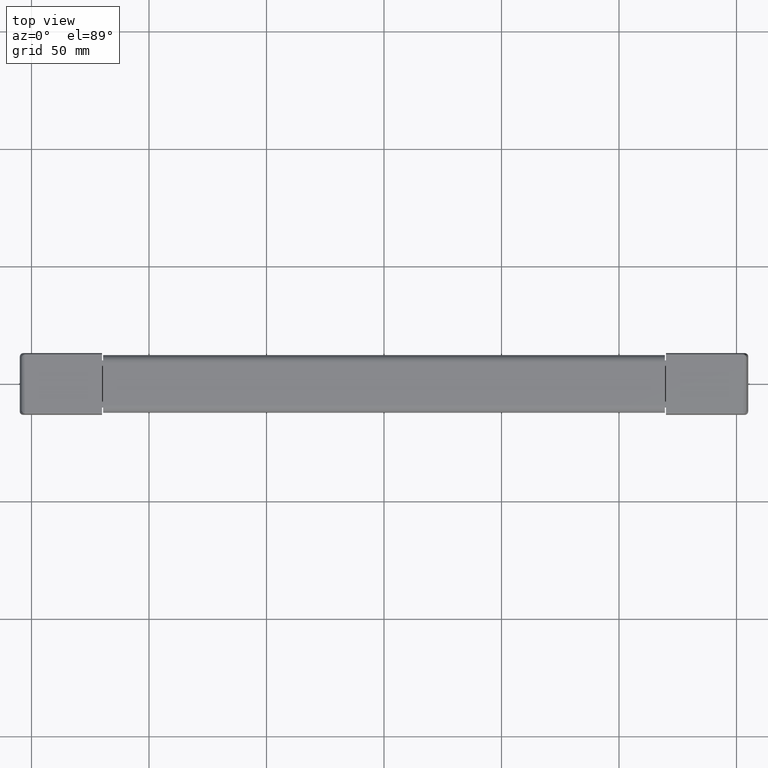
[diagram: clean part render]
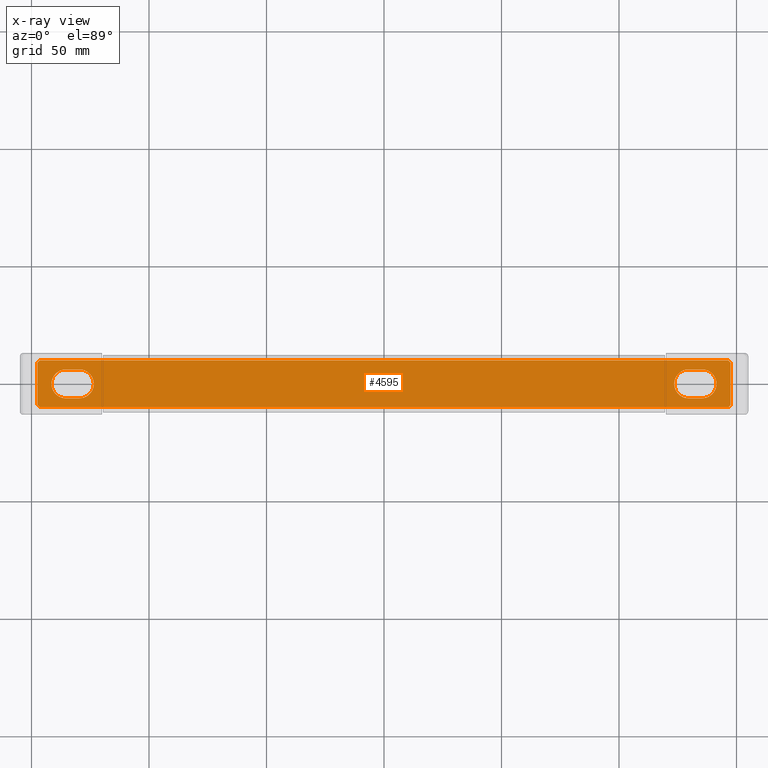
[diagram: x-ray — body ghosted, one internal face saturated and labeled with its STEP entity id]
A machine part, top view, then the same camera in x-ray: the body is ghosted and one INTERNAL B-rep face — a face not visible from any outside direction — is saturated and labeled: STEP entity #4595.
In plain terms, the highlighted face is a freeform B-spline surface patch.
Its self-contained STEP definition (entity closure, byte-faithful):
#3914=CARTESIAN_POINT('',(-129.650000000000010,-6.150000000000000,3.899999999999905));
#3915=VERTEX_POINT('',#3914);
#3916=CARTESIAN_POINT('',(-123.500000000002300,0.000005278252155,3.899999999999905));
#3917=VERTEX_POINT('',#3916);
#3918=CARTESIAN_POINT('',(-129.650000000000010,-6.150000000000000,3.899999999999905));
#3919=CARTESIAN_POINT('',(-128.794482525852090,-6.150978433271495,3.899999999999899));
#3920=CARTESIAN_POINT('',(-127.386549640076790,-5.851243054284996,3.899999999999921));
#3921=CARTESIAN_POINT('',(-125.830506803799390,-4.891965705270945,3.899999999999888));
#3922=CARTESIAN_POINT('',(-124.901115071875910,-3.962382461182531,3.899999999999928));
#3923=CARTESIAN_POINT('',(-124.244012957276200,-3.004656579273076,3.899999999999865));
#3924=CARTESIAN_POINT('',(-123.670204948428900,-1.710482182315854,3.899999999999920));
#3925=CARTESIAN_POINT('',(-123.499648515715090,-0.654126681943962,3.899999999999932));
#3926=CARTESIAN_POINT('',(-123.500000000002300,0.000005278252155,3.899999999999905));
#3927=B_SPLINE_CURVE_WITH_KNOTS('',3,(#3918,#3919,#3920,#3921,#3922,#3923,#3924,#3925,#3926),.UNSPECIFIED.,.F.,.U.,(4,1,1,1,1,1,4),(0.000000526711212,2.566114346727715,4.226619227032344,5.434025428642538,6.490741044698662,7.698351456268242,9.660642802673934),.UNSPECIFIED.);
#3928=EDGE_CURVE('',#3915,#3917,#3927,.T.);
#3930=CARTESIAN_POINT('',(-129.650000000000010,6.150000000000000,3.899999999999905));
#3931=VERTEX_POINT('',#3930);
#3932=CARTESIAN_POINT('',(-123.500000000002300,0.000005278252155,3.899999999999905));
#3933=CARTESIAN_POINT('',(-123.499936635991010,0.452815828078253,3.899999999999897));
#3934=CARTESIAN_POINT('',(-123.606015283477700,1.408788094731851,3.899999999999924));
#3935=CARTESIAN_POINT('',(-124.135265509304110,2.888558484527121,3.899999999999883));
#3936=CARTESIAN_POINT('',(-125.130937165871700,4.302560896817306,3.899999999999929));
#3937=CARTESIAN_POINT('',(-126.414214658166900,5.303692773215535,3.899999999999897));
#3938=CARTESIAN_POINT('',(-127.939523781540000,5.979771664106830,3.899999999999912));
#3939=CARTESIAN_POINT('',(-128.995869453399310,6.150354711880121,3.899999999999889));
#3940=CARTESIAN_POINT('',(-129.650000000000010,6.150000000000000,3.899999999999905));
#3941=B_SPLINE_CURVE_WITH_KNOTS('',3,(#3932,#3933,#3934,#3935,#3936,#3937,#3938,#3939,#3940),.UNSPECIFIED.,.F.,.U.,(4,1,1,1,1,1,4),(0.000000533938991,1.358476843175039,2.868028268193784,4.679441448799272,6.490737055104865,7.698346712516415,9.660636852705235),.UNSPECIFIED.);
#3942=EDGE_CURVE('',#3917,#3931,#3941,.T.);
#3992=CARTESIAN_POINT('',(-135.349999999999990,6.150000000000000,3.899999999999905));
#3993=VERTEX_POINT('',#3992);
#3994=CARTESIAN_POINT('',(-135.349999999999990,6.150000000000000,3.899999999999905));
#3995=CARTESIAN_POINT('',(-129.650000000000010,6.150000000000000,3.899999999999905));
#3996=QUASI_UNIFORM_CURVE('',1,(#3994,#3995),.UNSPECIFIED.,.F.,.U.);
#3997=EDGE_CURVE('',#3993,#3931,#3996,.T.);
#4033=CARTESIAN_POINT('',(-141.499999999997700,-0.000005278252190,3.899999999999905));
#4034=VERTEX_POINT('',#4033);
#4035=CARTESIAN_POINT('',(-135.349999999999990,6.150000000000000,3.899999999999905));
#4036=CARTESIAN_POINT('',(-135.903476997526890,6.150191622984140,3.899999999999907));
#4037=CARTESIAN_POINT('',(-136.959970820752600,6.006369374382826,3.899999999999907));
#4038=CARTESIAN_POINT('',(-138.505654475204490,5.366394890549661,3.899999999999903));
#4039=CARTESIAN_POINT('',(-139.788766922174890,4.365029047601166,3.899999999999894));
#4040=CARTESIAN_POINT('',(-140.694568998462100,3.143333747367200,3.899999999999904));
#4041=CARTESIAN_POINT('',(-141.329762568807010,1.710467088879136,3.899999999999901));
#4042=CARTESIAN_POINT('',(-141.500363166976000,0.654130221222710,3.899999999999915));
#4043=CARTESIAN_POINT('',(-141.499999999997700,-0.000005278252190,3.899999999999905));
#4044=B_SPLINE_CURVE_WITH_KNOTS('',3,(#4035,#4036,#4037,#4038,#4039,#4040,#4041,#4042,#4043),.UNSPECIFIED.,.F.,.U.,(4,1,1,1,1,1,4),(0.000000526682985,1.660411063216992,3.169902204550543,4.981197631951156,6.490741044688146,7.698351456261895,9.660642802674202),.UNSPECIFIED.);
#4045=EDGE_CURVE('',#3993,#4034,#4044,.T.);
#4047=CARTESIAN_POINT('',(-135.349999999999990,-6.150000000000000,3.899999999999905));
#4048=VERTEX_POINT('',#4047);
#4049=CARTESIAN_POINT('',(-141.499999999997700,-0.000005278252190,3.899999999999905));
#4050=CARTESIAN_POINT('',(-141.500201572533400,-0.553484951431761,3.899999999999908));
#4051=CARTESIAN_POINT('',(-141.369981668389190,-1.509322044904363,3.899999999999895));
#4052=CARTESIAN_POINT('',(-140.769884155257810,-3.066172236373837,3.899999999999920));
#4053=CARTESIAN_POINT('',(-139.887964077275000,-4.255436383360832,3.899999999999892));
#4054=CARTESIAN_POINT('',(-138.704746836212910,-5.201814884983049,3.899999999999909));
#4055=CARTESIAN_POINT('',(-137.311884710843490,-5.924796245212763,3.899999999999901));
#4056=CARTESIAN_POINT('',(-136.104824895975410,-6.150675103583311,3.899999999999910));
#4057=CARTESIAN_POINT('',(-135.349999999999990,-6.150000000000000,3.899999999999905));
#4058=B_SPLINE_CURVE_WITH_KNOTS('',3,(#4049,#4050,#4051,#4052,#4053,#4054,#4055,#4056,#4057),.UNSPECIFIED.,.F.,.U.,(4,1,1,1,1,1,4),(0.000000533917330,1.660410047678808,2.868028268179860,4.981194574179535,6.037828466710582,7.396429561214664,9.660636852705192),.UNSPECIFIED.);
#4059=EDGE_CURVE('',#4034,#4048,#4058,.T.);
#4103=CARTESIAN_POINT('',(-129.650000000000010,-6.150000000000000,3.899999999999905));
#4104=CARTESIAN_POINT('',(-135.349999999999990,-6.150000000000000,3.899999999999905));
#4105=QUASI_UNIFORM_CURVE('',1,(#4103,#4104),.UNSPECIFIED.,.F.,.U.);
#4106=EDGE_CURVE('',#3915,#4048,#4105,.T.);
#4136=CARTESIAN_POINT('',(135.349999999999990,-6.150000000000000,3.899999999999905));
#4137=VERTEX_POINT('',#4136);
#4138=CARTESIAN_POINT('',(141.499999999997700,0.000005278252190,3.899999999999905));
#4139=VERTEX_POINT('',#4138);
#4140=CARTESIAN_POINT('',(135.349999999999990,-6.150000000000000,3.899999999999905));
#4141=CARTESIAN_POINT('',(135.903476997526890,-6.150191622984140,3.899999999999907));
#4142=CARTESIAN_POINT('',(136.959970820752600,-6.006369374382826,3.899999999999907));
#4143=CARTESIAN_POINT('',(138.505654475204490,-5.366394890549661,3.899999999999903));
#4144=CARTESIAN_POINT('',(139.788766922174890,-4.365029047601166,3.899999999999894));
#4145=CARTESIAN_POINT('',(140.694568998462100,-3.143333747367200,3.899999999999904));
#4146=CARTESIAN_POINT('',(141.329762568807010,-1.710467088879136,3.899999999999901));
#4147=CARTESIAN_POINT('',(141.500363166976000,-0.654130221222710,3.899999999999915));
#4148=CARTESIAN_POINT('',(141.499999999997700,0.000005278252190,3.899999999999905));
#4149=B_SPLINE_CURVE_WITH_KNOTS('',3,(#4140,#4141,#4142,#4143,#4144,#4145,#4146,#4147,#4148),.UNSPECIFIED.,.F.,.U.,(4,1,1,1,1,1,4),(0.000000526682985,1.660411063216992,3.169902204550543,4.981197631951156,6.490741044688146,7.698351456261895,9.660642802674202),.UNSPECIFIED.);
#4150=EDGE_CURVE('',#4137,#4139,#4149,.T.);
#4152=CARTESIAN_POINT('',(135.349999999999990,6.150000000000000,3.899999999999905));
#4153=VERTEX_POINT('',#4152);
#4154=CARTESIAN_POINT('',(141.499999999997700,0.000005278252190,3.899999999999905));
#4155=CARTESIAN_POINT('',(141.500201572533400,0.553484951431761,3.899999999999908));
#4156=CARTESIAN_POINT('',(141.369981668389190,1.509322044904363,3.899999999999895));
#4157=CARTESIAN_POINT('',(140.769884155257810,3.066172236373837,3.899999999999920));
#4158=CARTESIAN_POINT('',(139.887964077275000,4.255436383360832,3.899999999999892));
#4159=CARTESIAN_POINT('',(138.704746836212910,5.201814884983049,3.899999999999909));
#4160=CARTESIAN_POINT('',(137.311884710843490,5.924796245212763,3.899999999999901));
#4161=CARTESIAN_POINT('',(136.104824895975410,6.150675103583311,3.899999999999910));
#4162=CARTESIAN_POINT('',(135.349999999999990,6.150000000000000,3.899999999999905));
#4163=B_SPLINE_CURVE_WITH_KNOTS('',3,(#4154,#4155,#4156,#4157,#4158,#4159,#4160,#4161,#4162),.UNSPECIFIED.,.F.,.U.,(4,1,1,1,1,1,4),(0.000000533917330,1.660410047678808,2.868028268179860,4.981194574179535,6.037828466710582,7.396429561214664,9.660636852705192),.UNSPECIFIED.);
#4164=EDGE_CURVE('',#4139,#4153,#4163,.T.);
#4214=CARTESIAN_POINT('',(129.650000000000010,-6.150000000000000,3.899999999999905));
#4215=VERTEX_POINT('',#4214);
#4216=CARTESIAN_POINT('',(129.650000000000010,-6.150000000000000,3.899999999999905));
#4217=CARTESIAN_POINT('',(135.349999999999990,-6.150000000000000,3.899999999999905));
#4218=QUASI_UNIFORM_CURVE('',1,(#4216,#4217),.UNSPECIFIED.,.F.,.U.);
#4219=EDGE_CURVE('',#4215,#4137,#4218,.T.);
#4255=CARTESIAN_POINT('',(129.650000000000010,6.150000000000000,3.899999999999905));
#4256=VERTEX_POINT('',#4255);
#4257=CARTESIAN_POINT('',(123.500000000002300,-0.000005278252155,3.899999999999905));
#4258=VERTEX_POINT('',#4257);
#4259=CARTESIAN_POINT('',(129.650000000000010,6.150000000000000,3.899999999999905));
#4260=CARTESIAN_POINT('',(128.794482525852090,6.150978433271495,3.899999999999899));
#4261=CARTESIAN_POINT('',(127.386549640076790,5.851243054284996,3.899999999999921));
#4262=CARTESIAN_POINT('',(125.830506803799390,4.891965705270945,3.899999999999888));
#4263=CARTESIAN_POINT('',(124.901115071875910,3.962382461182531,3.899999999999928));
#4264=CARTESIAN_POINT('',(124.244012957276200,3.004656579273076,3.899999999999865));
#4265=CARTESIAN_POINT('',(123.670204948428900,1.710482182315854,3.899999999999920));
#4266=CARTESIAN_POINT('',(123.499648515715090,0.654126681943962,3.899999999999932));
#4267=CARTESIAN_POINT('',(123.500000000002300,-0.000005278252155,3.899999999999905));
#4268=B_SPLINE_CURVE_WITH_KNOTS('',3,(#4259,#4260,#4261,#4262,#4263,#4264,#4265,#4266,#4267),.UNSPECIFIED.,.F.,.U.,(4,1,1,1,1,1,4),(0.000000526711212,2.566114346727715,4.226619227032344,5.434025428642538,6.490741044698662,7.698351456268242,9.660642802673934),.UNSPECIFIED.);
#4269=EDGE_CURVE('',#4256,#4258,#4268,.T.);
#4271=CARTESIAN_POINT('',(123.500000000002300,-0.000005278252155,3.899999999999905));
#4272=CARTESIAN_POINT('',(123.499936635991010,-0.452815828078253,3.899999999999897));
#4273=CARTESIAN_POINT('',(123.606015283477700,-1.408788094731851,3.899999999999924));
#4274=CARTESIAN_POINT('',(124.135265509304110,-2.888558484527121,3.899999999999883));
#4275=CARTESIAN_POINT('',(125.130937165871700,-4.302560896817306,3.899999999999929));
#4276=CARTESIAN_POINT('',(126.414214658166900,-5.303692773215535,3.899999999999897));
#4277=CARTESIAN_POINT('',(127.939523781540000,-5.979771664106830,3.899999999999912));
#4278=CARTESIAN_POINT('',(128.995869453399310,-6.150354711880121,3.899999999999889));
#4279=CARTESIAN_POINT('',(129.650000000000010,-6.150000000000000,3.899999999999905));
#4280=B_SPLINE_CURVE_WITH_KNOTS('',3,(#4271,#4272,#4273,#4274,#4275,#4276,#4277,#4278,#4279),.UNSPECIFIED.,.F.,.U.,(4,1,1,1,1,1,4),(0.000000533938991,1.358476843175039,2.868028268193784,4.679441448799272,6.490737055104865,7.698346712516415,9.660636852705235),.UNSPECIFIED.);
#4281=EDGE_CURVE('',#4258,#4215,#4280,.T.);
#4325=CARTESIAN_POINT('',(135.349999999999990,6.150000000000000,3.899999999999905));
#4326=CARTESIAN_POINT('',(129.650000000000010,6.150000000000000,3.899999999999905));
#4327=QUASI_UNIFORM_CURVE('',1,(#4325,#4326),.UNSPECIFIED.,.F.,.U.);
#4328=EDGE_CURVE('',#4153,#4256,#4327,.T.);
#4345=CARTESIAN_POINT('',(-147.500000000000000,9.0,3.899999999999905));
#4346=VERTEX_POINT('',#4345);
#4347=CARTESIAN_POINT('',(-146.500000000000000,10.0,3.899999999999905));
#4348=VERTEX_POINT('',#4347);
#4349=CARTESIAN_POINT('',(-147.500000000000000,9.0,3.899999999999905));
#4350=CARTESIAN_POINT('',(-146.500000000000000,10.0,3.899999999999905));
#4351=QUASI_UNIFORM_CURVE('',1,(#4349,#4350),.UNSPECIFIED.,.F.,.U.);
#4352=EDGE_CURVE('',#4346,#4348,#4351,.T.);
#4381=CARTESIAN_POINT('',(-147.500000000000000,-9.0,3.899999999999905));
#4382=VERTEX_POINT('',#4381);
#4383=CARTESIAN_POINT('',(-147.500000000000000,-9.0,3.899999999999905));
#4384=CARTESIAN_POINT('',(-147.500000000000000,9.0,3.899999999999905));
#4385=QUASI_UNIFORM_CURVE('',1,(#4383,#4384),.UNSPECIFIED.,.F.,.U.);
#4386=EDGE_CURVE('',#4382,#4346,#4385,.T.);
#4409=CARTESIAN_POINT('',(-146.500000000000000,-10.0,3.899999999999905));
#4410=VERTEX_POINT('',#4409);
#4411=CARTESIAN_POINT('',(-146.500000000000000,-10.0,3.899999999999905));
#4412=CARTESIAN_POINT('',(-147.500000000000000,-9.0,3.899999999999905));
#4413=QUASI_UNIFORM_CURVE('',1,(#4411,#4412),.UNSPECIFIED.,.F.,.U.);
#4414=EDGE_CURVE('',#4410,#4382,#4413,.T.);
#4437=CARTESIAN_POINT('',(146.500000000000000,-10.0,3.899999999999905));
#4438=VERTEX_POINT('',#4437);
#4439=CARTESIAN_POINT('',(146.500000000000000,-10.0,3.899999999999905));
#4440=CARTESIAN_POINT('',(-146.500000000000000,-10.0,3.899999999999905));
#4441=QUASI_UNIFORM_CURVE('',1,(#4439,#4440),.UNSPECIFIED.,.F.,.U.);
#4442=EDGE_CURVE('',#4438,#4410,#4441,.T.);
#4465=CARTESIAN_POINT('',(147.500000000000000,-9.0,3.899999999999905));
#4466=VERTEX_POINT('',#4465);
#4467=CARTESIAN_POINT('',(147.500000000000000,-9.0,3.899999999999905));
#4468=CARTESIAN_POINT('',(146.500000000000000,-10.0,3.899999999999905));
#4469=QUASI_UNIFORM_CURVE('',1,(#4467,#4468),.UNSPECIFIED.,.F.,.U.);
#4470=EDGE_CURVE('',#4466,#4438,#4469,.T.);
#4493=CARTESIAN_POINT('',(147.500000000000000,9.0,3.899999999999905));
#4494=VERTEX_POINT('',#4493);
#4495=CARTESIAN_POINT('',(147.500000000000000,9.0,3.899999999999905));
#4496=CARTESIAN_POINT('',(147.500000000000000,-9.0,3.899999999999905));
#4497=QUASI_UNIFORM_CURVE('',1,(#4495,#4496),.UNSPECIFIED.,.F.,.U.);
#4498=EDGE_CURVE('',#4494,#4466,#4497,.T.);
#4521=CARTESIAN_POINT('',(146.500000000000000,10.0,3.899999999999905));
#4522=VERTEX_POINT('',#4521);
#4523=CARTESIAN_POINT('',(146.500000000000000,10.0,3.899999999999905));
#4524=CARTESIAN_POINT('',(147.500000000000000,9.0,3.899999999999905));
#4525=QUASI_UNIFORM_CURVE('',1,(#4523,#4524),.UNSPECIFIED.,.F.,.U.);
#4526=EDGE_CURVE('',#4522,#4494,#4525,.T.);
#4549=CARTESIAN_POINT('',(-146.500000000000000,10.0,3.899999999999905));
#4550=CARTESIAN_POINT('',(146.500000000000000,10.0,3.899999999999905));
#4551=QUASI_UNIFORM_CURVE('',1,(#4549,#4550),.UNSPECIFIED.,.F.,.U.);
#4552=EDGE_CURVE('',#4348,#4522,#4551,.T.);
#4564=CARTESIAN_POINT('',(-162.235249428232810,10.998999961236120,3.899999999999895));
#4565=CARTESIAN_POINT('',(162.235257340749310,10.998999961236120,3.899999999999895));
#4566=CARTESIAN_POINT('',(-162.235249428232810,-10.999000497677921,3.899999999999895));
#4567=CARTESIAN_POINT('',(162.235257340749310,-10.999000497677921,3.899999999999895));
#4568=B_SPLINE_SURFACE_WITH_KNOTS('',1,1,((#4564,#4566),(#4565,#4567)),.UNSPECIFIED.,.F.,.F.,.U.,(2,2),(2,2),(0.0,324.470506768982090),(0.0,21.998000458914039),.UNSPECIFIED.);
#4569=ORIENTED_EDGE('',*,*,#4552,.F.);
#4570=ORIENTED_EDGE('',*,*,#4352,.F.);
#4571=ORIENTED_EDGE('',*,*,#4386,.F.);
#4572=ORIENTED_EDGE('',*,*,#4414,.F.);
#4573=ORIENTED_EDGE('',*,*,#4442,.F.);
#4574=ORIENTED_EDGE('',*,*,#4470,.F.);
#4575=ORIENTED_EDGE('',*,*,#4498,.F.);
#4576=ORIENTED_EDGE('',*,*,#4526,.F.);
#4577=EDGE_LOOP('',(#4569,#4570,#4571,#4572,#4573,#4574,#4575,#4576));
#4578=FACE_OUTER_BOUND('',#4577,.T.);
#4579=ORIENTED_EDGE('',*,*,#4328,.F.);
#4580=ORIENTED_EDGE('',*,*,#4164,.F.);
#4581=ORIENTED_EDGE('',*,*,#4150,.F.);
#4582=ORIENTED_EDGE('',*,*,#4219,.F.);
#4583=ORIENTED_EDGE('',*,*,#4281,.F.);
#4584=ORIENTED_EDGE('',*,*,#4269,.F.);
#4585=EDGE_LOOP('',(#4579,#4580,#4581,#4582,#4583,#4584));
#4586=FACE_BOUND('',#4585,.T.);
#4587=ORIENTED_EDGE('',*,*,#4106,.T.);
#4588=ORIENTED_EDGE('',*,*,#4059,.F.);
#4589=ORIENTED_EDGE('',*,*,#4045,.F.);
#4590=ORIENTED_EDGE('',*,*,#3997,.T.);
#4591=ORIENTED_EDGE('',*,*,#3942,.F.);
#4592=ORIENTED_EDGE('',*,*,#3928,.F.);
#4593=EDGE_LOOP('',(#4587,#4588,#4589,#4590,#4591,#4592));
#4594=FACE_BOUND('',#4593,.T.);
#4595=ADVANCED_FACE('',(#4578,#4586,#4594),#4568,.F.);